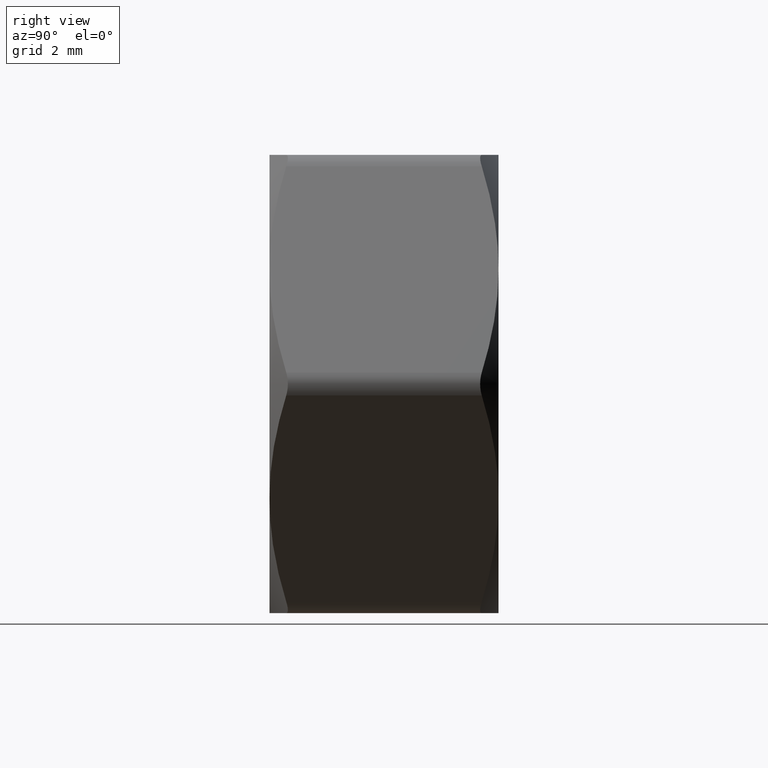
[diagram: clean part render]
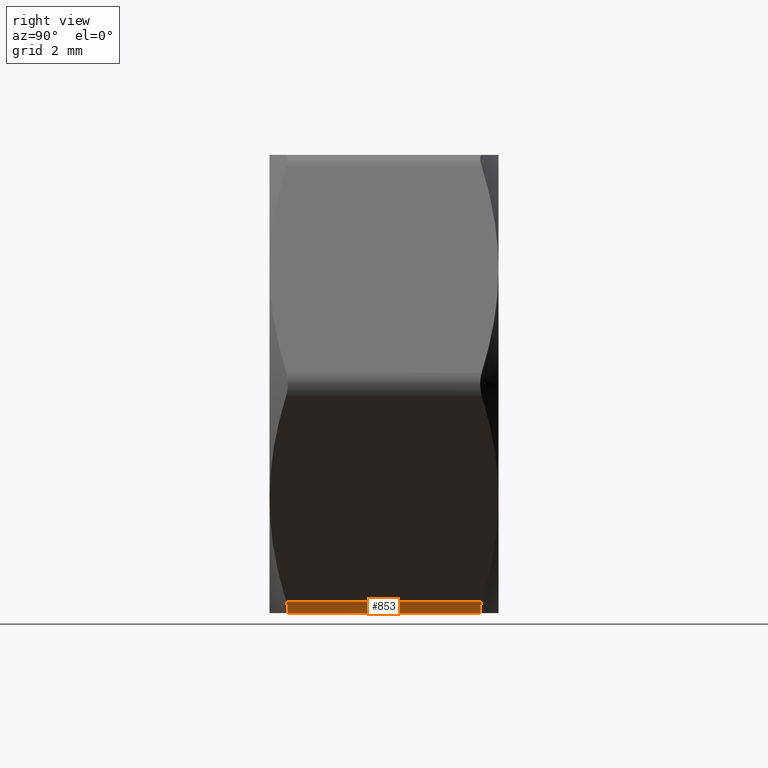
[diagram: same view with one face highlighted and labeled with its STEP entity id]
A machine part, right view. The second image highlights one B-rep face of the part: STEP entity #853.
In plain terms, the highlighted cylindrical surface (edge-blend (fillet) strip) has radius 0.5 mm, axis along (0, -1, 0).
Its self-contained STEP definition (entity closure, byte-faithful):
#95 = EDGE_CURVE ( 'NONE', #807, #559, #1611, .T. ) ;
#103 = CARTESIAN_POINT ( 'NONE',  ( 2.598076211353312900, 2.500000000000000000, -4.500000000000002700 ) ) ;
#227 = CARTESIAN_POINT ( 'NONE',  ( 3.031088913243828100, 2.133547796623370500, -4.750000000002954100 ) ) ;
#238 = CARTESIAN_POINT ( 'NONE',  ( 2.771465113497980400, -2.098116676514297600, -4.977155422018788600 ) ) ;
#249 = CARTESIAN_POINT ( 'NONE',  ( 2.598076211353313300, 2.133547796624276800, -5.000000000000002700 ) ) ;
#290 = VECTOR ( 'NONE', #1189, 1000.000000000000000 ) ;
#373 = CARTESIAN_POINT ( 'NONE',  ( 2.772296152498293400, 2.098035946016742600, -4.976852619009480200 ) ) ;
#394 = CARTESIAN_POINT ( 'NONE',  ( 2.923932722703279600, -2.098035946016579200, -4.889305204383000500 ) ) ;
#534 = CARTESIAN_POINT ( 'NONE',  ( 3.031088913245532500, -2.133547796624277700, -4.750000000000001800 ) ) ;
#559 = VERTEX_POINT ( 'NONE', #1217 ) ;
#644 = CARTESIAN_POINT ( 'NONE',  ( 2.988078037752631500, 2.110648208416784100, -4.824497021631725800 ) ) ;
#651 = CARTESIAN_POINT ( 'NONE',  ( 2.684125924131240700, 2.110640764794212500, -5.000000000000002700 ) ) ;
#723 = ORIENTED_EDGE ( 'NONE', *, *, #998, .F. ) ;
#727 = EDGE_CURVE ( 'NONE', #814, #1350, #824, .T. ) ;
#783 = EDGE_CURVE ( 'NONE', #559, #814, #1053, .T. ) ;
#798 = CARTESIAN_POINT ( 'NONE',  ( 2.988064056856281100, -2.110640764794059300, -4.824521237254543800 ) ) ;
#807 = VERTEX_POINT ( 'NONE', #1178 ) ;
#814 = VERTEX_POINT ( 'NONE', #1447 ) ;
#824 = LINE ( 'NONE', #1596, #290 ) ;
#849 = CARTESIAN_POINT ( 'NONE',  ( 3.031088913243828100, 2.133547796623370500, -4.750000000002954100 ) ) ;
#853 = ADVANCED_FACE ( 'NONE', ( #1510 ), #1344, .T. ) ;
#880 = DIRECTION ( 'NONE',  ( 0.0000000000000000000, -1.000000000000000000, 0.0000000000000000000 ) ) ;
#914 = CARTESIAN_POINT ( 'NONE',  ( 2.684097962339620800, -2.110648208417555500, -5.000000000000003600 ) ) ;
#930 = CARTESIAN_POINT ( 'NONE',  ( 2.924610477300865000, 2.098116676514132800, -4.888736905002411400 ) ) ;
#998 = EDGE_CURVE ( 'NONE', #1350, #807, #1325, .T. ) ;
#1019 = CARTESIAN_POINT ( 'NONE',  ( 2.598076211353312900, 2.500000000000000000, -5.000000000000002700 ) ) ;
#1046 = DIRECTION ( 'NONE',  ( 0.0000000000000000000, -1.000000000000000000, 0.0000000000000000000 ) ) ;
#1053 = B_SPLINE_CURVE_WITH_KNOTS ( 'NONE', 3,
 ( #1180, #914, #238, #394, #798, #534 ),
 .UNSPECIFIED., .F., .F.,
 ( 4, 2, 4 ),
 ( 4.336808689942017700E-019, 0.0002635016616917558300, 0.0005270033233835112200 ),
 .UNSPECIFIED. ) ;
#1060 = DIRECTION ( 'NONE',  ( 0.0000000000000000000, 0.0000000000000000000, -1.000000000000000000 ) ) ;
#1065 = EDGE_LOOP ( 'NONE', ( #723, #1430, #1762, #1089 ) ) ;
#1089 = ORIENTED_EDGE ( 'NONE', *, *, #95, .F. ) ;
#1148 = VECTOR ( 'NONE', #880, 1000.000000000000000 ) ;
#1178 = CARTESIAN_POINT ( 'NONE',  ( 2.598076211353313300, 2.133547796624276800, -5.000000000000002700 ) ) ;
#1180 = CARTESIAN_POINT ( 'NONE',  ( 2.598076211353313300, -2.133547796624276800, -5.000000000000002700 ) ) ;
#1189 = DIRECTION ( 'NONE',  ( -0.0000000000000000000, 1.000000000000000000, -0.0000000000000000000 ) ) ;
#1217 = CARTESIAN_POINT ( 'NONE',  ( 2.598076211353313300, -2.133547796624276800, -5.000000000000002700 ) ) ;
#1325 = B_SPLINE_CURVE_WITH_KNOTS ( 'NONE', 3,
 ( #227, #644, #930, #373, #651, #249 ),
 .UNSPECIFIED., .F., .F.,
 ( 4, 2, 4 ),
 ( 3.308391038941997800E-015, 0.0002635016616933983400, 0.0005270033233834883500 ),
 .UNSPECIFIED. ) ;
#1344 = CYLINDRICAL_SURFACE ( 'NONE', #1390, 0.5000000000000004400 ) ;
#1350 = VERTEX_POINT ( 'NONE', #849 ) ;
#1390 = AXIS2_PLACEMENT_3D ( 'NONE', #103, #1046, #1060 ) ;
#1430 = ORIENTED_EDGE ( 'NONE', *, *, #727, .F. ) ;
#1447 = CARTESIAN_POINT ( 'NONE',  ( 3.031088913245532500, -2.133547796624277700, -4.750000000000001800 ) ) ;
#1510 = FACE_OUTER_BOUND ( 'NONE', #1065, .T. ) ;
#1596 = CARTESIAN_POINT ( 'NONE',  ( 3.031088913245532500, 2.500000000000000000, -4.750000000000002700 ) ) ;
#1611 = LINE ( 'NONE', #1019, #1148 ) ;
#1762 = ORIENTED_EDGE ( 'NONE', *, *, #783, .F. ) ;